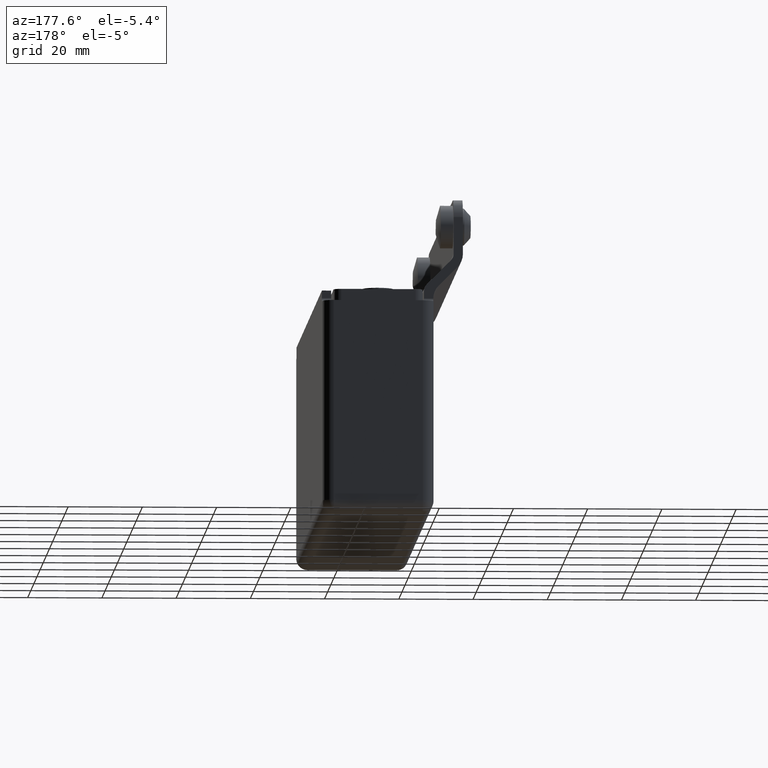
[diagram: clean part render]
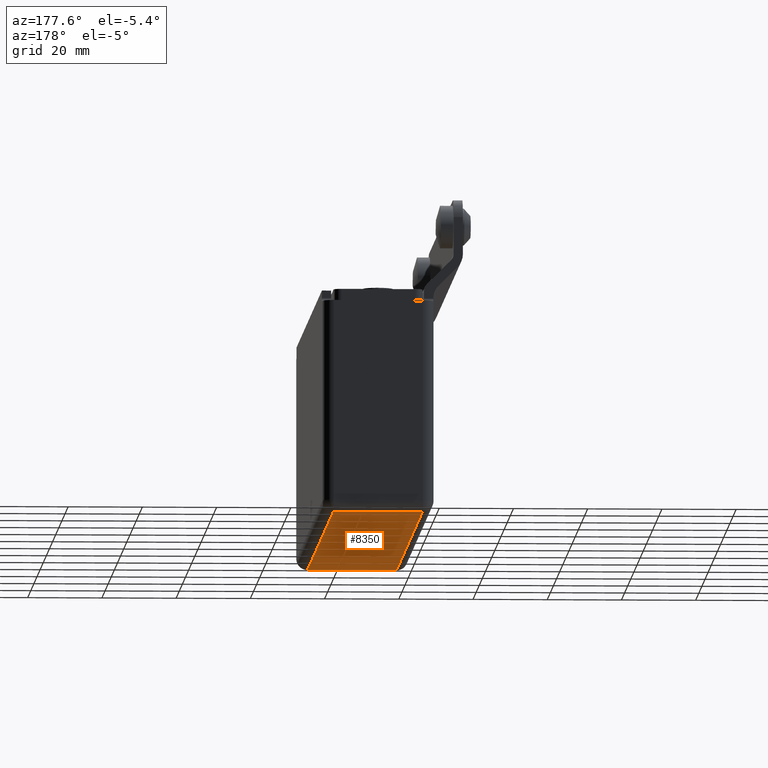
[diagram: same view with one face highlighted and labeled with its STEP entity id]
A machine part, auxiliary view. The second image highlights one B-rep face of the part: STEP entity #8350.
In plain terms, the highlighted planar face has unit normal (0, 0, 1).
Its self-contained STEP definition (entity closure, byte-faithful):
#371 = CARTESIAN_POINT ( 'NONE',  ( -15.00000000000000178, -83.49999999999998579, -29.99999999999999645 ) ) ;
#666 = VECTOR ( 'NONE', #8588, 1000.000000000000000 ) ;
#966 = ORIENTED_EDGE ( 'NONE', *, *, #10819, .T. ) ;
#1160 = DIRECTION ( 'NONE',  ( 1.000000000000000000, -0.000000000000000000, -0.000000000000000000 ) ) ;
#1283 = EDGE_CURVE ( 'NONE', #4041, #12702, #14955, .T. ) ;
#1655 = EDGE_CURVE ( 'NONE', #14710, #11156, #9165, .T. ) ;
#2279 = CARTESIAN_POINT ( 'NONE',  ( -12.00000000000000000, -83.49999999999998579, -29.99999999999999645 ) ) ;
#2801 = DIRECTION ( 'NONE',  ( 0.000000000000000000, 0.000000000000000000, 1.000000000000000000 ) ) ;
#2855 = ORIENTED_EDGE ( 'NONE', *, *, #10472, .T. ) ;
#4041 = VERTEX_POINT ( 'NONE', #7818 ) ;
#4693 = ORIENTED_EDGE ( 'NONE', *, *, #1655, .T. ) ;
#5374 = VECTOR ( 'NONE', #1160, 1000.000000000000000 ) ;
#5658 = CARTESIAN_POINT ( 'NONE',  ( 11.99999999999999467, 83.49999999999998579, -29.99999999999999645 ) ) ;
#6321 = DIRECTION ( 'NONE',  ( 1.000000000000000000, 0.000000000000000000, -0.000000000000000000 ) ) ;
#7532 = CARTESIAN_POINT ( 'NONE',  ( -12.00000000000000000, 86.50000000000000000, -29.99999999999999645 ) ) ;
#7580 = PLANE ( 'NONE',  #8455 ) ;
#7703 = VECTOR ( 'NONE', #13391, 1000.000000000000000 ) ;
#7818 = CARTESIAN_POINT ( 'NONE',  ( -12.00000000000000000, 83.49999999999998579, -29.99999999999999645 ) ) ;
#8083 = LINE ( 'NONE', #11481, #9894 ) ;
#8350 = ADVANCED_FACE ( 'NONE', ( #11182 ), #7580, .F. ) ;
#8455 = AXIS2_PLACEMENT_3D ( 'NONE', #9724, #2801, #6321 ) ;
#8588 = DIRECTION ( 'NONE',  ( -1.000000000000000000, 0.000000000000000000, 0.000000000000000000 ) ) ;
#9165 = LINE ( 'NONE', #371, #666 ) ;
#9269 = DIRECTION ( 'NONE',  ( 0.000000000000000000, -1.000000000000000000, 0.000000000000000000 ) ) ;
#9446 = ORIENTED_EDGE ( 'NONE', *, *, #1283, .T. ) ;
#9724 = CARTESIAN_POINT ( 'NONE',  ( -15.00000000000000178, 86.50000000000000000, -29.99999999999999645 ) ) ;
#9894 = VECTOR ( 'NONE', #9269, 1000.000000000000000 ) ;
#10472 = EDGE_CURVE ( 'NONE', #12702, #14710, #8083, .T. ) ;
#10819 = EDGE_CURVE ( 'NONE', #11156, #4041, #11141, .T. ) ;
#11141 = LINE ( 'NONE', #7532, #7703 ) ;
#11156 = VERTEX_POINT ( 'NONE', #2279 ) ;
#11182 = FACE_OUTER_BOUND ( 'NONE', #12968, .T. ) ;
#11481 = CARTESIAN_POINT ( 'NONE',  ( 11.99999999999999467, 86.50000000000000000, -29.99999999999999645 ) ) ;
#12702 = VERTEX_POINT ( 'NONE', #5658 ) ;
#12968 = EDGE_LOOP ( 'NONE', ( #2855, #4693, #966, #9446 ) ) ;
#13056 = CARTESIAN_POINT ( 'NONE',  ( 11.99999999999999467, -83.49999999999998579, -29.99999999999999645 ) ) ;
#13391 = DIRECTION ( 'NONE',  ( -0.000000000000000000, 1.000000000000000000, -0.000000000000000000 ) ) ;
#14710 = VERTEX_POINT ( 'NONE', #13056 ) ;
#14927 = CARTESIAN_POINT ( 'NONE',  ( 14.99999999999999822, 83.49999999999998579, -29.99999999999999645 ) ) ;
#14955 = LINE ( 'NONE', #14927, #5374 ) ;